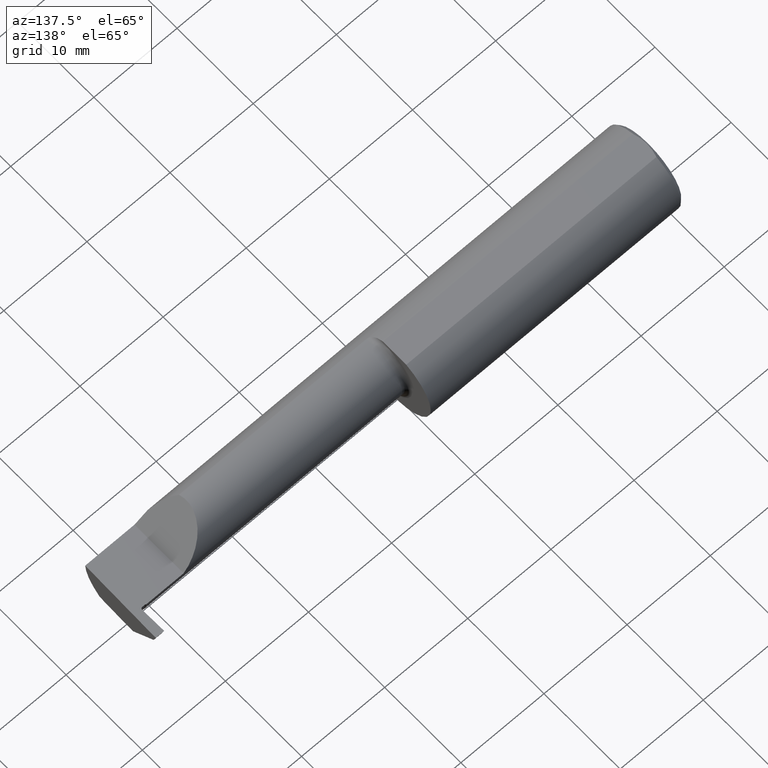
[diagram: clean part render]
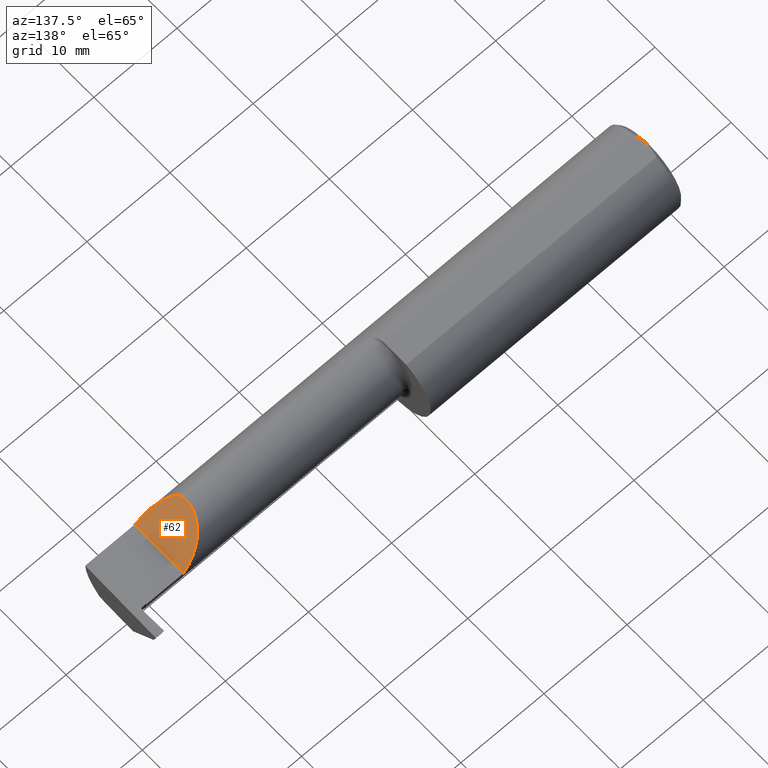
[diagram: same view with one face highlighted and labeled with its STEP entity id]
A machine part, auxiliary view. The second image highlights one B-rep face of the part: STEP entity #62.
In plain terms, the highlighted planar face has unit normal (-0.7071, 0, -0.7071).
Its self-contained STEP definition (entity closure, byte-faithful):
#9 = ORIENTED_EDGE ( 'NONE', *, *, #332, .F. ) ;
#55 = CARTESIAN_POINT ( 'NONE',  ( 2.113883229301070532, -0.1172600179964006228, 0.1461167706989303650 ) ) ;
#58 = CARTESIAN_POINT ( 'NONE',  ( 2.260000000000000231, -0.2000000000000000111, 2.939152317953647352E-17 ) ) ;
#62 = ADVANCED_FACE ( 'NONE', ( #854 ), #471, .F. ) ;
#76 = LINE ( 'NONE', #525, #794 ) ;
#105 = CARTESIAN_POINT ( 'NONE',  ( 2.113883229301070532, -0.1172600179964006228, 0.1461167706989303650 ) ) ;
#128 = ORIENTED_EDGE ( 'NONE', *, *, #782, .T. ) ;
#154 =( BOUNDED_CURVE ( )  B_SPLINE_CURVE ( 3, ( #230, #526, #671, #105 ),
 .UNSPECIFIED., .F., .F. ) 
 B_SPLINE_CURVE_WITH_KNOTS ( ( 4, 4 ),
 ( 4.712388980384688786, 5.606916381293136631 ),
 .UNSPECIFIED. ) 
 CURVE ( )  GEOMETRIC_REPRESENTATION_ITEM ( )  RATIONAL_B_SPLINE_CURVE ( ( 1.000000000000000000, 0.9344226172588802060, 0.9344226172588802060, 1.000000000000000000 ) ) 
 REPRESENTATION_ITEM ( '' )  );
#199 = EDGE_CURVE ( 'NONE', #497, #856, #804, .T. ) ;
#230 = CARTESIAN_POINT ( 'NONE',  ( 2.260000000000000231, -0.1873499999999999888, 2.939152317953647352E-17 ) ) ;
#305 = CARTESIAN_POINT ( 'NONE',  ( 2.260000000000000231, -0.1873499999999999888, 2.939152317953647352E-17 ) ) ;
#309 = CARTESIAN_POINT ( 'NONE',  ( 2.260000000000000231, 0.06665000000000002867, 2.939152317953647352E-17 ) ) ;
#332 = EDGE_CURVE ( 'NONE', #786, #497, #154, .T. ) ;
#377 = ORIENTED_EDGE ( 'NONE', *, *, #199, .F. ) ;
#405 = DIRECTION ( 'NONE',  ( -0.7071067811865454633, 0.000000000000000000, 0.7071067811865496822 ) ) ;
#471 = PLANE ( 'NONE',  #864 ) ;
#496 = CARTESIAN_POINT ( 'NONE',  ( 2.113883229301070532, -0.1172600179964006228, 0.1461167706989303650 ) ) ;
#497 = VERTEX_POINT ( 'NONE', #55 ) ;
#525 = CARTESIAN_POINT ( 'NONE',  ( 2.260000000000000231, -0.2000000000000000111, 2.939152317953647352E-17 ) ) ;
#526 = CARTESIAN_POINT ( 'NONE',  ( 2.202189699843949633, -0.1873500000000000998, 0.05781030015605104211 ) ) ;
#601 = CARTESIAN_POINT ( 'NONE',  ( 2.090221225029928576, -0.01530148607434153249, 0.1697787749700726267 ) ) ;
#645 = CARTESIAN_POINT ( 'NONE',  ( 2.155331797197864496, 0.06665000000000011193, 0.1046682028021360122 ) ) ;
#671 = CARTESIAN_POINT ( 'NONE',  ( 2.150065971957467070, -0.1623470442677541759, 0.1099340280425336880 ) ) ;
#697 = DIRECTION ( 'NONE',  ( -0.7071067811865496822, 0.000000000000000000, -0.7071067811865454633 ) ) ;
#732 = DIRECTION ( 'NONE',  ( -0.000000000000000000, 1.000000000000000000, -0.000000000000000000 ) ) ;
#782 = EDGE_CURVE ( 'NONE', #786, #856, #76, .T. ) ;
#786 = VERTEX_POINT ( 'NONE', #305 ) ;
#794 = VECTOR ( 'NONE', #732, 39.37007874015748143 ) ;
#804 =( BOUNDED_CURVE ( )  B_SPLINE_CURVE ( 3, ( #496, #601, #645, #860 ),
 .UNSPECIFIED., .F., .T. ) 
 B_SPLINE_CURVE_WITH_KNOTS ( ( 4, 4 ),
 ( 6.055147272130142255, 7.853981633974483678 ),
 .UNSPECIFIED. ) 
 CURVE ( )  GEOMETRIC_REPRESENTATION_ITEM ( )  RATIONAL_B_SPLINE_CURVE ( ( 1.000000000000000000, 0.7480442670255265103, 0.7480442670255265103, 1.000000000000000000 ) ) 
 REPRESENTATION_ITEM ( '' )  );
#854 = FACE_OUTER_BOUND ( 'NONE', #918, .T. ) ;
#856 = VERTEX_POINT ( 'NONE', #309 ) ;
#860 = CARTESIAN_POINT ( 'NONE',  ( 2.260000000000000231, 0.06665000000000002867, 2.939152317953647352E-17 ) ) ;
#864 = AXIS2_PLACEMENT_3D ( 'NONE', #58, #697, #405 ) ;
#918 = EDGE_LOOP ( 'NONE', ( #377, #9, #128 ) ) ;